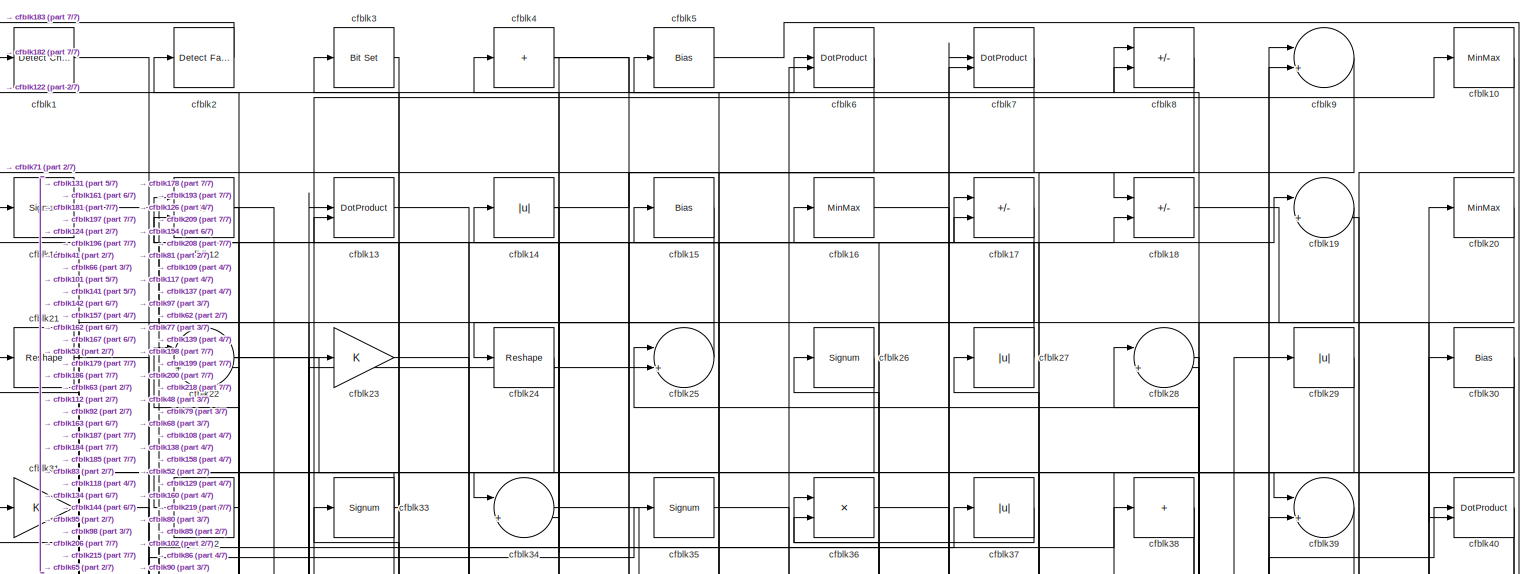
[diagram: root canvas - part 1/7, full width, top band]
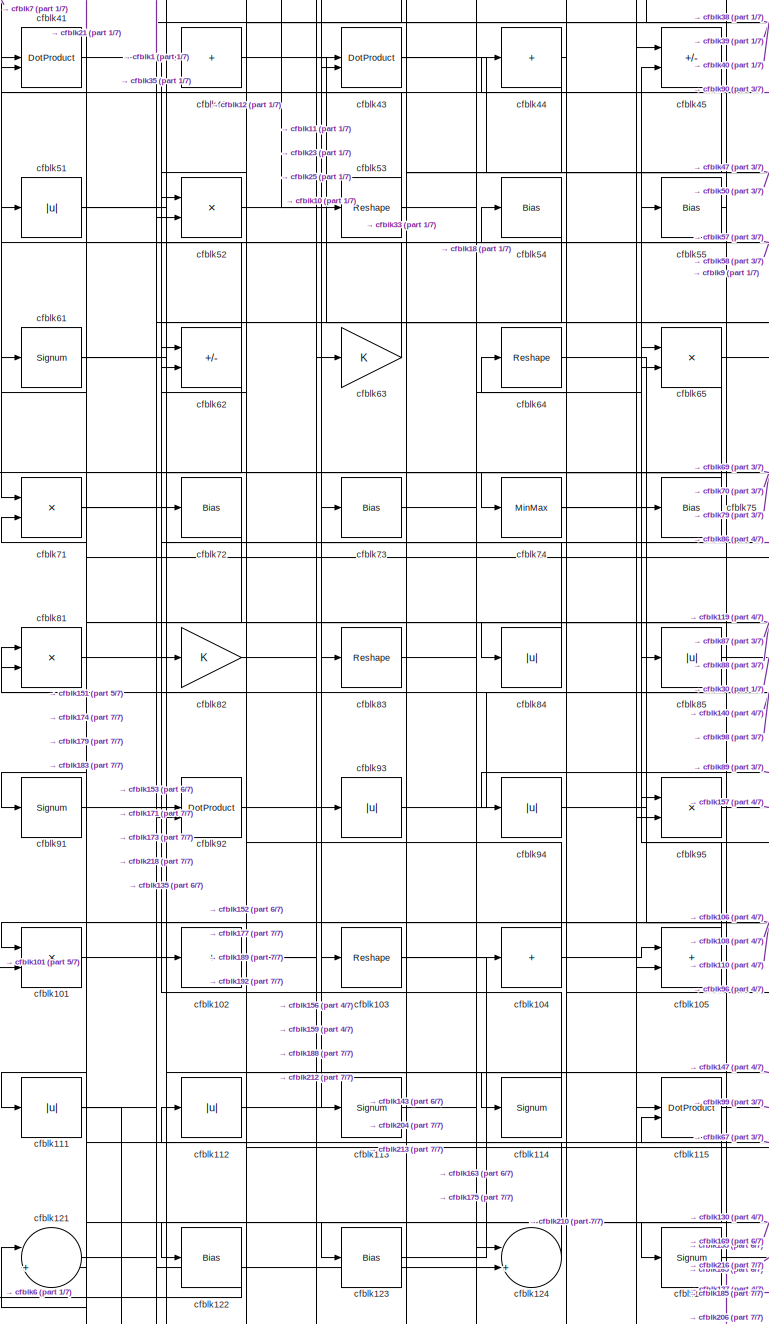
[diagram: root canvas - part 2/7, middle left region]
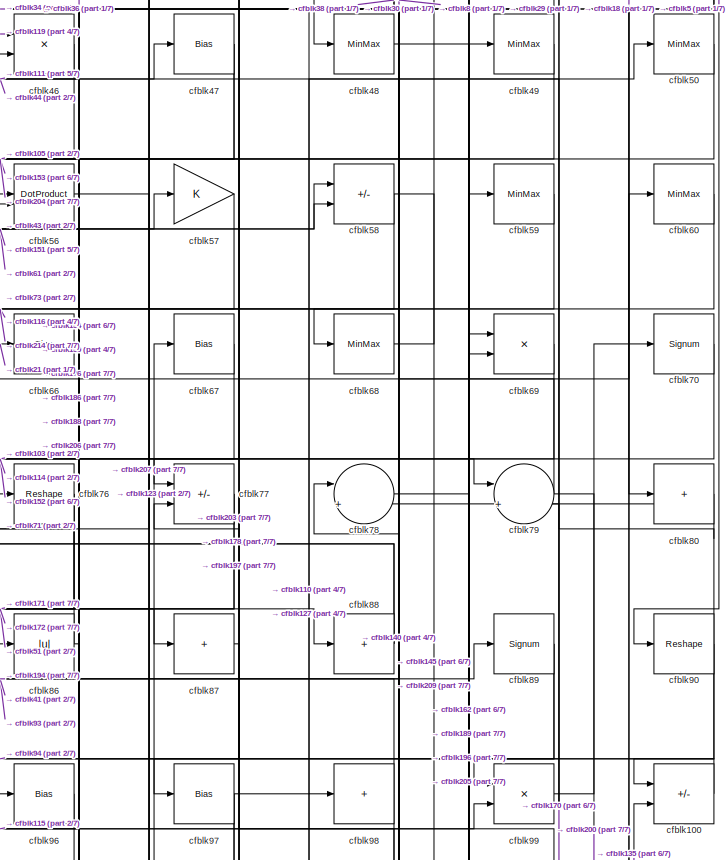
[diagram: root canvas - part 3/7, top right region]
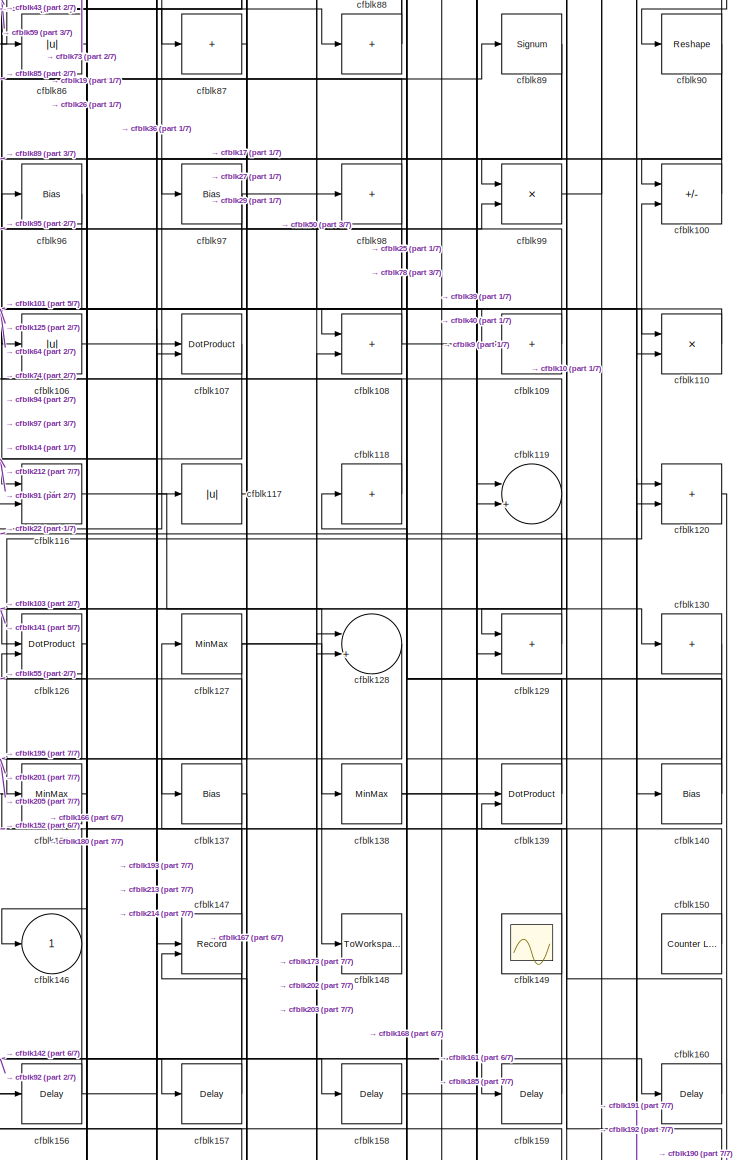
[diagram: root canvas - part 4/7, middle right region]
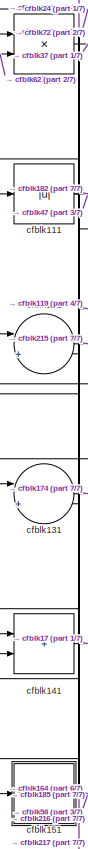
[diagram: root canvas - part 5/7, middle left region]
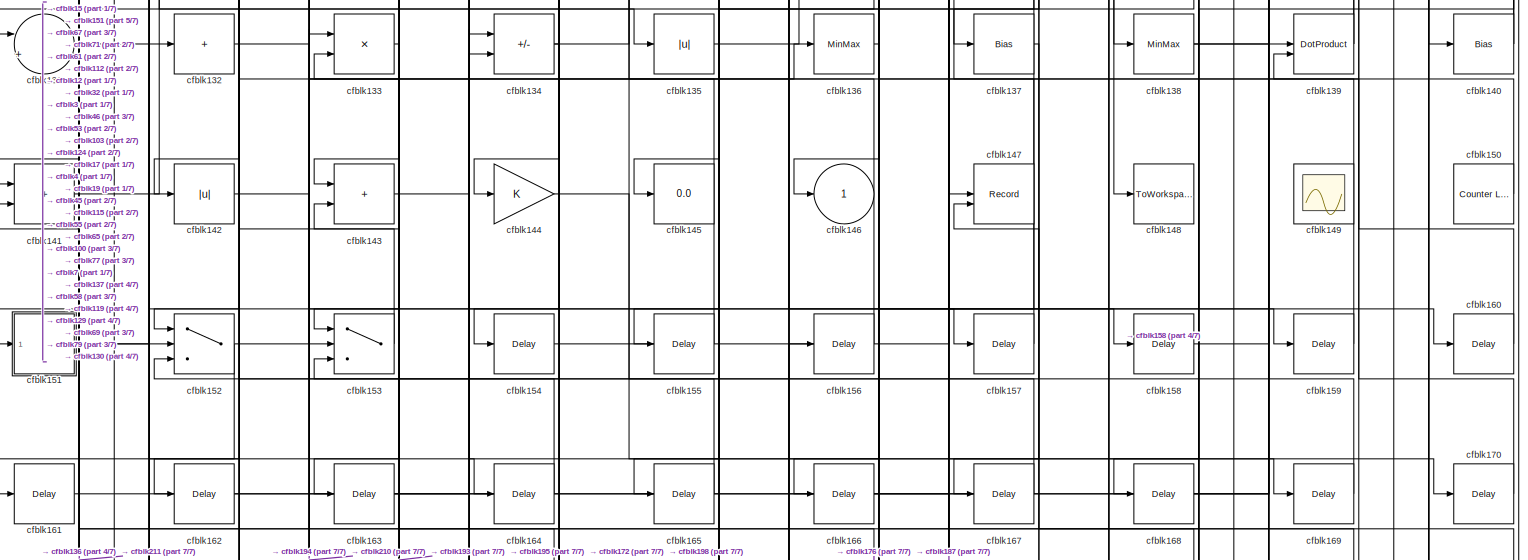
[diagram: root canvas - part 6/7, full width, bottom band]
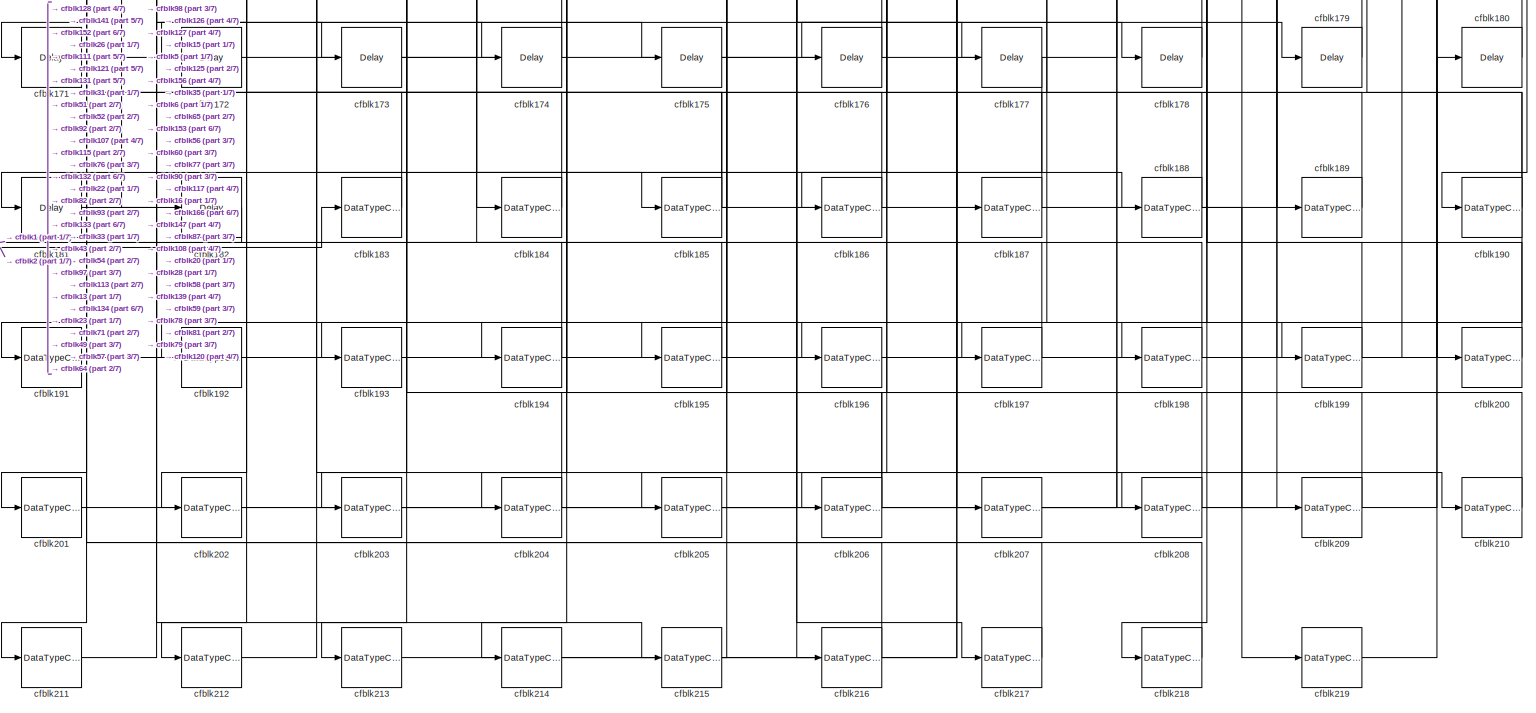
[diagram: root canvas - part 7/7, full width, bottom band]
MODEL slx_3afa9d4de656
KIND model
CONFIG AbsTol = auto
CONFIG EnableMultiTasking = off
CONFIG FixedStep = auto
CONFIG MaxStep = auto
CONFIG MinStep = auto
CONFIG RelTol = 1e-3
CONFIG SampleTimeConstraint = Unconstrained
CONFIG SolverName = VariableStepAuto
CONFIG StartTime = 0.0
CONFIG StopTime = 10.0
BLOCK [Reference] cfblk1  REF=simulink/Logic and Bit
Operations/Detect
Change
  LibrarySourceBlock = hdlsllib/Logic and Bit\nOperations/Detect\nChange
  SourceBlock = simulink/Logic and Bit\nOperations/Detect\nChange
  SourceType = Detect Change
BLOCK [MinMax] cfblk10
BLOCK [Sum] cfblk100
  IconShape = rectangular
  Inputs = +-
BLOCK [Product] cfblk101
  Inputs = */
  RndMeth = Zero
  SaturateOnIntegerOverflow = on
BLOCK [Sum] cfblk102
  IconShape = rectangular
  Inputs = +
BLOCK [Reshape] cfblk103
BLOCK [Sum] cfblk104
  IconShape = rectangular
  Inputs = +
BLOCK [Sum] cfblk105
  IconShape = rectangular
BLOCK [Abs] cfblk106
  SaturateOnIntegerOverflow = off
BLOCK [DotProduct] cfblk107
  OutDataTypeStr = Inherit: Inherit via internal rule
BLOCK [Sum] cfblk108
  IconShape = rectangular
BLOCK [Sum] cfblk109
  IconShape = rectangular
  Inputs = +
BLOCK [Signum] cfblk11
BLOCK [Product] cfblk110
  Inputs = */
  RndMeth = Zero
  SaturateOnIntegerOverflow = on
BLOCK [Abs] cfblk111
  SaturateOnIntegerOverflow = off
BLOCK [Abs] cfblk112
  SaturateOnIntegerOverflow = off
BLOCK [Signum] cfblk113
BLOCK [Signum] cfblk114
BLOCK [DotProduct] cfblk115
  OutDataTypeStr = Inherit: Inherit via internal rule
BLOCK [Product] cfblk116
  Inputs = */
  RndMeth = Zero
  SaturateOnIntegerOverflow = on
BLOCK [Abs] cfblk117
  SaturateOnIntegerOverflow = off
BLOCK [Sum] cfblk118
  IconShape = rectangular
  Inputs = +
BLOCK [Sum] cfblk119
  Inputs = |++
BLOCK [Sum] cfblk12
  IconShape = rectangular
  Inputs = +-
BLOCK [Sum] cfblk120
  IconShape = rectangular
BLOCK [Sum] cfblk121
  Inputs = |++
BLOCK [Bias] cfblk122
  Bias = 0.0
  SaturateOnIntegerOverflow = off
BLOCK [Bias] cfblk123
  Bias = 0.0
  SaturateOnIntegerOverflow = off
BLOCK [Sum] cfblk124
  Inputs = |++
BLOCK [Signum] cfblk125
BLOCK [DotProduct] cfblk126
  OutDataTypeStr = Inherit: Inherit via internal rule
BLOCK [MinMax] cfblk127
BLOCK [Sum] cfblk128
  Inputs = |++
BLOCK [Sum] cfblk129
  IconShape = rectangular
BLOCK [DotProduct] cfblk13
  OutDataTypeStr = Inherit: Inherit via internal rule
BLOCK [Sum] cfblk130
  IconShape = rectangular
  Inputs = +
BLOCK [Sum] cfblk131
  Inputs = |++
BLOCK [Sum] cfblk132
  IconShape = rectangular
  Inputs = +
BLOCK [Product] cfblk133
  Inputs = */
  RndMeth = Zero
  SaturateOnIntegerOverflow = on
BLOCK [Sum] cfblk134
  IconShape = rectangular
  Inputs = +-
BLOCK [Abs] cfblk135
  SaturateOnIntegerOverflow = off
BLOCK [MinMax] cfblk136
BLOCK [Bias] cfblk137
  Bias = 0.0
  SaturateOnIntegerOverflow = off
BLOCK [MinMax] cfblk138
BLOCK [DotProduct] cfblk139
  OutDataTypeStr = Inherit: Inherit via internal rule
BLOCK [Abs] cfblk14
  SaturateOnIntegerOverflow = off
BLOCK [Bias] cfblk140
  Bias = 0.0
  SaturateOnIntegerOverflow = off
BLOCK [Sum] cfblk141
  IconShape = rectangular
BLOCK [Abs] cfblk142
  SaturateOnIntegerOverflow = off
BLOCK [Sum] cfblk143
  IconShape = rectangular
BLOCK [Gain] cfblk144
BLOCK [Display] cfblk145
  Decimation = 1
BLOCK [Outport] cfblk146
  VectorParamsAs1DForOutWhenUnconnected = off
BLOCK [Record] cfblk147
  CompatibilityTag = XY
  FileSettingsInternal = {"entries":[{"content":{"excelSettings":{"content":{},"type":"Streamout.ExcelSettings"}},"type":"Streamout.FileSettingStorage","uuid":""}],"packageUris":["http:\/\/schema.mathworks.com\/mf0\/streamout_blocks\/R2020a"],"version":"1.0"}
  Layout = [1 1]
  SignalsInternal = {"entries":[{"content":{"signals":[{"content":{"blockPath":[],"dimensions":[1],"domain":"","lineColor":"#a2142f","plots":[1],"port":1,"signalID":1073,"signalName":"XY Graph:1"},"type":"RecordBlkView.Signal","uuid":""},{"content":{"blockPath":[],"dimensions":[1],"domain":"","lineColor":"#139fff","plots":[1],"port":2,"signalID":1076,"signalName":"XY Graph:2"},"type":"RecordBlkView.Signal","uuid":""}...<+146ch>
  VisualizationBindings = {"xyplotplugin":{"info":[{"series":[{"bindingParametersList":[{"parameter":"X-Axis","signalID":1073,"signalName":"XY Graph:1"},{"parameter":"Y-Axis","signalID":1076,"signalName":"XY Graph:2"}],"seriesID":12696}],"subplotID":1}]}}
  st = -1
BLOCK [ToWorkspace] cfblk148
  MaxDataPoints = inf
  SampleTime = -1
  SaveFormat = Timeseries
  VariableName = simout
BLOCK [Scope] cfblk149
  Floating = on
  NumInputPorts = 1
  ScopeSpecificationString = Simulink.scopes.TimeScopeBlockCfg('CurrentConfiguration', extmgr.ConfigurationSet(extmgr.Configuration('Core','General UI',true,'FigureColor',[0.156862745098039 0.156862745098039 0.156862745098039]),extmgr.Configuration('Core','Source UI',true),extmgr.Configuration('Sources','WiredSimulink',true,'DataLoggingVariableName','ScopeData1','DataLoggingSaveFormat','StructureWithTime','DataLoggingLimitDat...<+2713ch>
BLOCK [Bias] cfblk15
  Bias = 0.0
  SaturateOnIntegerOverflow = off
BLOCK [Reference] cfblk150  REF=hdlsllib/Sources/Counter
Limited
  SourceBlock = hdlsllib/Sources/Counter\nLimited
  SourceType = Counter Limited
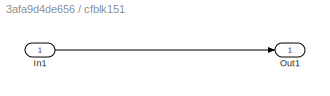
BLOCK [SubSystem] cfblk151
  LibrarySourceBlock = hdlsllib/Ports &\nSubsystems/Subsystem
BLOCK [Inport] cfblk151/In1
BLOCK [Outport] cfblk151/Out1
BLOCK [Switch] cfblk152
  InputSameDT = off
  SaturateOnIntegerOverflow = off
BLOCK [Switch] cfblk153
  InputSameDT = off
  SaturateOnIntegerOverflow = off
BLOCK [Delay] cfblk154
  InputPortMap = u0
  SampleTime = 1
BLOCK [Delay] cfblk155
  InputPortMap = u0
  SampleTime = 1
BLOCK [Delay] cfblk156
  InputPortMap = u0
  SampleTime = 1
BLOCK [Delay] cfblk157
  InputPortMap = u0
  SampleTime = 1
BLOCK [Delay] cfblk158
  InputPortMap = u0
  SampleTime = 1
BLOCK [Delay] cfblk159
  InputPortMap = u0
  SampleTime = 1
BLOCK [MinMax] cfblk16
BLOCK [Delay] cfblk160
  InputPortMap = u0
  SampleTime = 1
BLOCK [Delay] cfblk161
  InputPortMap = u0
  SampleTime = 1
BLOCK [Delay] cfblk162
  InputPortMap = u0
  SampleTime = 1
BLOCK [Delay] cfblk163
  InputPortMap = u0
  SampleTime = 1
BLOCK [Delay] cfblk164
  InputPortMap = u0
  SampleTime = 1
BLOCK [Delay] cfblk165
  InputPortMap = u0
  SampleTime = 1
BLOCK [Delay] cfblk166
  InputPortMap = u0
  SampleTime = 1
BLOCK [Delay] cfblk167
  InputPortMap = u0
  SampleTime = 1
BLOCK [Delay] cfblk168
  InputPortMap = u0
  SampleTime = 1
BLOCK [Delay] cfblk169
  InputPortMap = u0
  SampleTime = 1
BLOCK [Sum] cfblk17
  IconShape = rectangular
  Inputs = +-
BLOCK [Delay] cfblk170
  InputPortMap = u0
  SampleTime = 1
BLOCK [Delay] cfblk171
  InputPortMap = u0
  SampleTime = 1
BLOCK [Delay] cfblk172
  InputPortMap = u0
  SampleTime = 1
BLOCK [Delay] cfblk173
  InputPortMap = u0
  SampleTime = 1
BLOCK [Delay] cfblk174
  InputPortMap = u0
  SampleTime = 1
BLOCK [Delay] cfblk175
  InputPortMap = u0
  SampleTime = 1
BLOCK [Delay] cfblk176
  InputPortMap = u0
  SampleTime = 1
BLOCK [Delay] cfblk177
  InputPortMap = u0
  SampleTime = 1
BLOCK [Delay] cfblk178
  InputPortMap = u0
  SampleTime = 1
BLOCK [Delay] cfblk179
  InputPortMap = u0
  SampleTime = 1
BLOCK [Sum] cfblk18
  IconShape = rectangular
  Inputs = +-
BLOCK [Delay] cfblk180
  InputPortMap = u0
  SampleTime = 1
BLOCK [Delay] cfblk181
  InputPortMap = u0
  SampleTime = 1
BLOCK [Delay] cfblk182
  InputPortMap = u0
  SampleTime = 1
BLOCK [DataTypeConversion] cfblk183
  OutDataTypeStr = uint8
  RndMeth = Floor
  SaturateOnIntegerOverflow = off
BLOCK [DataTypeConversion] cfblk184
  OutDataTypeStr = uint8
  RndMeth = Floor
  SaturateOnIntegerOverflow = off
BLOCK [DataTypeConversion] cfblk185
  RndMeth = Floor
  SaturateOnIntegerOverflow = off
BLOCK [DataTypeConversion] cfblk186
  OutDataTypeStr = uint8
  RndMeth = Floor
  SaturateOnIntegerOverflow = off
BLOCK [DataTypeConversion] cfblk187
  OutDataTypeStr = uint8
  RndMeth = Floor
  SaturateOnIntegerOverflow = off
BLOCK [DataTypeConversion] cfblk188
  RndMeth = Floor
  SaturateOnIntegerOverflow = off
BLOCK [DataTypeConversion] cfblk189
  OutDataTypeStr = uint8
  RndMeth = Floor
  SaturateOnIntegerOverflow = off
BLOCK [Sum] cfblk19
  Inputs = |++
BLOCK [DataTypeConversion] cfblk190
  RndMeth = Floor
  SaturateOnIntegerOverflow = off
BLOCK [DataTypeConversion] cfblk191
  OutDataTypeStr = uint8
  RndMeth = Floor
  SaturateOnIntegerOverflow = off
BLOCK [DataTypeConversion] cfblk192
  OutDataTypeStr = uint8
  RndMeth = Floor
  SaturateOnIntegerOverflow = off
BLOCK [DataTypeConversion] cfblk193
  RndMeth = Floor
  SaturateOnIntegerOverflow = off
BLOCK [DataTypeConversion] cfblk194
  OutDataTypeStr = uint8
  RndMeth = Floor
  SaturateOnIntegerOverflow = off
BLOCK [DataTypeConversion] cfblk195
  OutDataTypeStr = uint8
  RndMeth = Floor
  SaturateOnIntegerOverflow = off
BLOCK [DataTypeConversion] cfblk196
  RndMeth = Floor
  SaturateOnIntegerOverflow = off
BLOCK [DataTypeConversion] cfblk197
  OutDataTypeStr = uint8
  RndMeth = Floor
  SaturateOnIntegerOverflow = off
BLOCK [DataTypeConversion] cfblk198
  OutDataTypeStr = uint8
  RndMeth = Floor
  SaturateOnIntegerOverflow = off
BLOCK [DataTypeConversion] cfblk199
  OutDataTypeStr = uint8
  RndMeth = Floor
  SaturateOnIntegerOverflow = off
BLOCK [Reference] cfblk2  REF=hdlsllib/Logic and Bit
Operations/Detect Fall
Negative
  SourceBlock = hdlsllib/Logic and Bit\nOperations/Detect Fall\nNegative
  SourceType = Detect Fall Negative
BLOCK [MinMax] cfblk20
BLOCK [DataTypeConversion] cfblk200
  OutDataTypeStr = uint8
  RndMeth = Floor
  SaturateOnIntegerOverflow = off
BLOCK [DataTypeConversion] cfblk201
  OutDataTypeStr = uint8
  RndMeth = Floor
  SaturateOnIntegerOverflow = off
BLOCK [DataTypeConversion] cfblk202
  OutDataTypeStr = uint8
  RndMeth = Floor
  SaturateOnIntegerOverflow = off
BLOCK [DataTypeConversion] cfblk203
  OutDataTypeStr = uint8
  RndMeth = Floor
  SaturateOnIntegerOverflow = off
BLOCK [DataTypeConversion] cfblk204
  OutDataTypeStr = uint8
  RndMeth = Floor
  SaturateOnIntegerOverflow = off
BLOCK [DataTypeConversion] cfblk205
  OutDataTypeStr = uint8
  RndMeth = Floor
  SaturateOnIntegerOverflow = off
BLOCK [DataTypeConversion] cfblk206
  RndMeth = Floor
  SaturateOnIntegerOverflow = off
BLOCK [DataTypeConversion] cfblk207
  OutDataTypeStr = uint8
  RndMeth = Floor
  SaturateOnIntegerOverflow = off
BLOCK [DataTypeConversion] cfblk208
  OutDataTypeStr = uint8
  RndMeth = Floor
  SaturateOnIntegerOverflow = off
BLOCK [DataTypeConversion] cfblk209
  OutDataTypeStr = uint8
  RndMeth = Floor
  SaturateOnIntegerOverflow = off
BLOCK [Reshape] cfblk21
BLOCK [DataTypeConversion] cfblk210
  OutDataTypeStr = uint8
  RndMeth = Floor
  SaturateOnIntegerOverflow = off
BLOCK [DataTypeConversion] cfblk211
  OutDataTypeStr = uint8
  RndMeth = Floor
  SaturateOnIntegerOverflow = off
BLOCK [DataTypeConversion] cfblk212
  OutDataTypeStr = uint8
  RndMeth = Floor
  SaturateOnIntegerOverflow = off
BLOCK [DataTypeConversion] cfblk213
  OutDataTypeStr = uint8
  RndMeth = Floor
  SaturateOnIntegerOverflow = off
BLOCK [DataTypeConversion] cfblk214
  OutDataTypeStr = uint8
  RndMeth = Floor
  SaturateOnIntegerOverflow = off
BLOCK [DataTypeConversion] cfblk215
  OutDataTypeStr = uint8
  RndMeth = Floor
  SaturateOnIntegerOverflow = off
BLOCK [DataTypeConversion] cfblk216
  OutDataTypeStr = uint8
  RndMeth = Floor
  SaturateOnIntegerOverflow = off
BLOCK [DataTypeConversion] cfblk217
  OutDataTypeStr = uint8
  RndMeth = Floor
  SaturateOnIntegerOverflow = off
BLOCK [DataTypeConversion] cfblk218
  OutDataTypeStr = uint8
  RndMeth = Floor
  SaturateOnIntegerOverflow = off
BLOCK [DataTypeConversion] cfblk219
  OutDataTypeStr = uint8
  RndMeth = Floor
  SaturateOnIntegerOverflow = off
BLOCK [Sum] cfblk22
  Inputs = |++
BLOCK [Gain] cfblk23
BLOCK [Reshape] cfblk24
BLOCK [Sum] cfblk25
  Inputs = |++
BLOCK [Signum] cfblk26
BLOCK [Abs] cfblk27
  SaturateOnIntegerOverflow = off
BLOCK [Sum] cfblk28
  Inputs = |++
BLOCK [Abs] cfblk29
  SaturateOnIntegerOverflow = off
BLOCK [Reference] cfblk3  REF=simulink/Logic and Bit
Operations/Bit Set
  LibrarySourceBlock = hdlsllib/Logic and Bit\nOperations/Bit Set
  SourceBlock = simulink/Logic and Bit\nOperations/Bit Set
  SourceType = Bit Set
BLOCK [Bias] cfblk30
  Bias = 0.0
  SaturateOnIntegerOverflow = off
BLOCK [Gain] cfblk31
BLOCK [Signum] cfblk32
BLOCK [Signum] cfblk33
BLOCK [Sum] cfblk34
  Inputs = |++
BLOCK [Signum] cfblk35
BLOCK [Product] cfblk36
  Inputs = */
  RndMeth = Zero
  SaturateOnIntegerOverflow = on
BLOCK [Abs] cfblk37
  SaturateOnIntegerOverflow = off
BLOCK [Sum] cfblk38
  IconShape = rectangular
  Inputs = +
BLOCK [Sum] cfblk39
  Inputs = |++
BLOCK [Sum] cfblk4
  IconShape = rectangular
  Inputs = +
BLOCK [DotProduct] cfblk40
  OutDataTypeStr = Inherit: Inherit via internal rule
BLOCK [DotProduct] cfblk41
  OutDataTypeStr = Inherit: Inherit via internal rule
BLOCK [Sum] cfblk42
  IconShape = rectangular
  Inputs = +
BLOCK [DotProduct] cfblk43
  OutDataTypeStr = Inherit: Inherit via internal rule
BLOCK [Sum] cfblk44
  IconShape = rectangular
  Inputs = +
BLOCK [Sum] cfblk45
  IconShape = rectangular
  Inputs = +-
BLOCK [Product] cfblk46
  Inputs = */
  RndMeth = Zero
  SaturateOnIntegerOverflow = on
BLOCK [Bias] cfblk47
  Bias = 0.0
  SaturateOnIntegerOverflow = off
BLOCK [MinMax] cfblk48
BLOCK [MinMax] cfblk49
BLOCK [Bias] cfblk5
  Bias = 0.0
  SaturateOnIntegerOverflow = off
BLOCK [MinMax] cfblk50
BLOCK [Abs] cfblk51
  SaturateOnIntegerOverflow = off
BLOCK [Product] cfblk52
  Inputs = */
  RndMeth = Zero
  SaturateOnIntegerOverflow = on
BLOCK [Reshape] cfblk53
BLOCK [Bias] cfblk54
  Bias = 0.0
  SaturateOnIntegerOverflow = off
BLOCK [Bias] cfblk55
  Bias = 0.0
  SaturateOnIntegerOverflow = off
BLOCK [DotProduct] cfblk56
  OutDataTypeStr = Inherit: Inherit via internal rule
BLOCK [Gain] cfblk57
BLOCK [Sum] cfblk58
  IconShape = rectangular
  Inputs = +-
BLOCK [MinMax] cfblk59
BLOCK [DotProduct] cfblk6
  OutDataTypeStr = Inherit: Inherit via internal rule
BLOCK [MinMax] cfblk60
BLOCK [Signum] cfblk61
BLOCK [Sum] cfblk62
  IconShape = rectangular
  Inputs = +-
BLOCK [Gain] cfblk63
BLOCK [Reshape] cfblk64
BLOCK [Product] cfblk65
  Inputs = */
  RndMeth = Zero
  SaturateOnIntegerOverflow = on
BLOCK [Bias] cfblk66
  Bias = 0.0
  SaturateOnIntegerOverflow = off
BLOCK [Bias] cfblk67
  Bias = 0.0
  SaturateOnIntegerOverflow = off
BLOCK [MinMax] cfblk68
BLOCK [Product] cfblk69
  Inputs = */
  RndMeth = Zero
  SaturateOnIntegerOverflow = on
BLOCK [DotProduct] cfblk7
  OutDataTypeStr = Inherit: Inherit via internal rule
BLOCK [Signum] cfblk70
BLOCK [Product] cfblk71
  Inputs = */
  RndMeth = Zero
  SaturateOnIntegerOverflow = on
BLOCK [Bias] cfblk72
  Bias = 0.0
  SaturateOnIntegerOverflow = off
BLOCK [Bias] cfblk73
  Bias = 0.0
  SaturateOnIntegerOverflow = off
BLOCK [MinMax] cfblk74
BLOCK [Bias] cfblk75
  Bias = 0.0
  SaturateOnIntegerOverflow = off
BLOCK [Reshape] cfblk76
BLOCK [Sum] cfblk77
  IconShape = rectangular
  Inputs = +-
BLOCK [Sum] cfblk78
  Inputs = |++
BLOCK [Sum] cfblk79
  Inputs = |++
BLOCK [Sum] cfblk8
  IconShape = rectangular
  Inputs = +-
BLOCK [Sum] cfblk80
  IconShape = rectangular
  Inputs = +
BLOCK [Product] cfblk81
  Inputs = */
  RndMeth = Zero
  SaturateOnIntegerOverflow = on
BLOCK [Gain] cfblk82
BLOCK [Reshape] cfblk83
BLOCK [Abs] cfblk84
  SaturateOnIntegerOverflow = off
BLOCK [Abs] cfblk85
  SaturateOnIntegerOverflow = off
BLOCK [Abs] cfblk86
  SaturateOnIntegerOverflow = off
BLOCK [Sum] cfblk87
  IconShape = rectangular
  Inputs = +
BLOCK [Sum] cfblk88
  IconShape = rectangular
  Inputs = +
BLOCK [Signum] cfblk89
BLOCK [Sum] cfblk9
  Inputs = |++
BLOCK [Reshape] cfblk90
BLOCK [Signum] cfblk91
BLOCK [DotProduct] cfblk92
  OutDataTypeStr = Inherit: Inherit via internal rule
BLOCK [Abs] cfblk93
  SaturateOnIntegerOverflow = off
BLOCK [Abs] cfblk94
  SaturateOnIntegerOverflow = off
BLOCK [Product] cfblk95
  Inputs = */
  RndMeth = Zero
  SaturateOnIntegerOverflow = on
BLOCK [Bias] cfblk96
  Bias = 0.0
  SaturateOnIntegerOverflow = off
BLOCK [Bias] cfblk97
  Bias = 0.0
  SaturateOnIntegerOverflow = off
BLOCK [Sum] cfblk98
  IconShape = rectangular
  Inputs = +
BLOCK [Product] cfblk99
  Inputs = */
  RndMeth = Zero
  SaturateOnIntegerOverflow = on
LINE cfblk100:1 -> cfblk99:1
LINE cfblk101:1 -> cfblk37:1
NET cfblk102:1 -> cfblk23:1, cfblk25:2
NET cfblk103:1 -> cfblk130:1, cfblk169:1
NET cfblk104:1 -> cfblk105:1, cfblk62:2
LINE cfblk105:1 -> cfblk45:2
LINE cfblk106:1 -> cfblk160:1
LINE cfblk107:1 -> cfblk212:1
NET cfblk108:1 -> cfblk40:1, cfblk95:1
LINE cfblk109:1 -> cfblk17:1
LINE cfblk10:1 -> cfblk129:1
LINE cfblk110:1 -> cfblk101:1
NET cfblk111:1 -> cfblk182:1, cfblk47:1
LINE cfblk112:1 -> cfblk10:1
LINE cfblk113:1 -> cfblk175:1
LINE cfblk114:1 -> cfblk72:1
NET cfblk115:1 -> cfblk155:1, cfblk192:1, cfblk99:2
LINE cfblk116:1 -> cfblk148:1
LINE cfblk117:1 -> cfblk27:1
LINE cfblk118:1 -> cfblk14:1
NET cfblk119:1 -> cfblk141:1, cfblk46:1
LINE cfblk11:1 -> cfblk63:1
LINE cfblk120:1 -> cfblk190:1
LINE cfblk121:1 -> cfblk215:1
LINE cfblk122:1 -> cfblk6:1
LINE cfblk123:1 -> cfblk67:1
LINE cfblk124:1 -> cfblk81:1
LINE cfblk125:1 -> cfblk216:1
NET cfblk126:1 -> cfblk205:1, cfblk26:1
NET cfblk127:1 -> cfblk138:1, cfblk195:1, cfblk50:1
LINE cfblk128:1 -> cfblk201:1
LINE cfblk129:1 -> cfblk22:2
NET cfblk12:1 -> cfblk142:1, cfblk53:1
LINE cfblk130:1 -> cfblk168:1
LINE cfblk131:1 -> cfblk174:1
LINE cfblk132:1 -> cfblk210:1
LINE cfblk133:1 -> cfblk193:1
NET cfblk134:1 -> cfblk19:1, cfblk4:1
LINE cfblk135:1 -> cfblk100:2
LINE cfblk136:1 -> cfblk96:1
NET cfblk137:1 -> cfblk166:1, cfblk167:1, cfblk55:1
NET cfblk138:1 -> cfblk9:1, cfblk9:2
NET cfblk139:1 -> cfblk118:1, cfblk25:1
LINE cfblk13:1 -> cfblk185:1
NET cfblk140:1 -> cfblk78:1, cfblk85:1
LINE cfblk141:1 -> cfblk17:2
LINE cfblk142:1 -> cfblk158:1
LINE cfblk143:1 -> cfblk65:2
LINE cfblk144:1 -> cfblk170:1
NET cfblk14:1 -> cfblk18:1, cfblk34:1
LINE cfblk150:1 -> cfblk127:1
LINE cfblk151/In1:1 -> cfblk151/Out1:1
NET cfblk151:1 -> cfblk164:1, cfblk58:2
NET cfblk152:1 -> cfblk136:1, cfblk211:1
LINE cfblk153:1 -> cfblk112:1
LINE cfblk154:1 -> cfblk7:1
LINE cfblk155:1 -> cfblk45:1
LINE cfblk156:1 -> cfblk43:1
LINE cfblk157:1 -> cfblk22:1
LINE cfblk158:1 -> cfblk39:2
LINE cfblk159:1 -> cfblk46:2
LINE cfblk15:1 -> cfblk161:1
LINE cfblk160:1 -> cfblk19:2
LINE cfblk161:1 -> cfblk119:2
LINE cfblk162:1 -> cfblk69:1
LINE cfblk163:1 -> cfblk124:1
LINE cfblk164:1 -> cfblk152:3
LINE cfblk165:1 -> cfblk115:1
LINE cfblk166:1 -> cfblk187:1
LINE cfblk167:1 -> cfblk12:2
LINE cfblk168:1 -> cfblk129:2
LINE cfblk169:1 -> cfblk143:2
LINE cfblk16:1 -> cfblk208:1
LINE cfblk170:1 -> cfblk79:2
LINE cfblk171:1 -> cfblk52:2
LINE cfblk172:1 -> cfblk134:2
LINE cfblk173:1 -> cfblk108:2
LINE cfblk174:1 -> cfblk71:2
LINE cfblk175:1 -> cfblk217:1
LINE cfblk176:1 -> cfblk153:3
LINE cfblk177:1 -> cfblk191:1
LINE cfblk178:1 -> cfblk77:2
LINE cfblk179:1 -> cfblk81:2
LINE cfblk17:1 -> cfblk144:1
LINE cfblk180:1 -> cfblk126:2
LINE cfblk181:1 -> cfblk199:1
LINE cfblk182:1 -> cfblk1:1
LINE cfblk183:1 -> cfblk51:1
LINE cfblk184:1 -> cfblk2:1
NET cfblk185:1 -> cfblk115:2, cfblk131:2, cfblk139:1, cfblk141:2
LINE cfblk186:1 -> cfblk13:1
LINE cfblk187:1 -> cfblk13:2
NET cfblk188:1 -> cfblk219:1, cfblk56:2
LINE cfblk189:1 -> cfblk82:1
LINE cfblk18:1 -> cfblk80:1
NET cfblk190:1 -> cfblk139:2, cfblk147:2, cfblk202:1
LINE cfblk191:1 -> cfblk120:1
LINE cfblk192:1 -> cfblk120:2
NET cfblk193:1 -> cfblk117:1, cfblk6:2
LINE cfblk194:1 -> cfblk133:1
LINE cfblk195:1 -> cfblk133:2
NET cfblk196:1 -> cfblk180:1, cfblk59:1
LINE cfblk197:1 -> cfblk31:1
LINE cfblk198:1 -> cfblk134:1
LINE cfblk199:1 -> cfblk28:1
LINE cfblk19:1 -> cfblk126:1
LINE cfblk1:1 -> cfblk124:2
LINE cfblk200:1 -> cfblk28:2
LINE cfblk201:1 -> cfblk156:1
LINE cfblk202:1 -> cfblk128:1
LINE cfblk203:1 -> cfblk128:2
LINE cfblk204:1 -> cfblk43:2
LINE cfblk205:1 -> cfblk49:1
NET cfblk206:1 -> cfblk15:1, cfblk64:1
LINE cfblk207:1 -> cfblk60:1
LINE cfblk208:1 -> cfblk33:1
LINE cfblk209:1 -> cfblk16:1
LINE cfblk20:1 -> cfblk218:1
LINE cfblk210:1 -> cfblk54:1
LINE cfblk211:1 -> cfblk132:1
LINE cfblk212:1 -> cfblk93:1
LINE cfblk213:1 -> cfblk107:1
LINE cfblk214:1 -> cfblk107:2
LINE cfblk215:1 -> cfblk5:1
LINE cfblk216:1 -> cfblk121:1
LINE cfblk217:1 -> cfblk121:2
LINE cfblk218:1 -> cfblk92:1
LINE cfblk219:1 -> cfblk20:1
LINE cfblk21:1 -> cfblk66:1
NET cfblk22:1 -> cfblk179:1, cfblk39:1
LINE cfblk23:1 -> cfblk184:1
LINE cfblk24:1 -> cfblk131:1
LINE cfblk25:1 -> cfblk24:1
LINE cfblk26:1 -> cfblk181:1
LINE cfblk27:1 -> cfblk12:1
LINE cfblk28:1 -> cfblk198:1
LINE cfblk29:1 -> cfblk137:1
LINE cfblk2:1 -> cfblk183:1
NET cfblk30:1 -> cfblk48:1, cfblk68:1
LINE cfblk31:1 -> cfblk196:1
LINE cfblk32:1 -> cfblk162:1
NET cfblk33:1 -> cfblk32:1, cfblk3:1, cfblk92:2
LINE cfblk34:1 -> cfblk98:1
LINE cfblk35:1 -> cfblk178:1
LINE cfblk36:1 -> cfblk109:1
LINE cfblk37:1 -> cfblk36:1
NET cfblk38:1 -> cfblk62:1, cfblk77:1
LINE cfblk39:1 -> cfblk52:1
LINE cfblk3:1 -> cfblk163:1
NET cfblk40:1 -> cfblk102:1, cfblk86:1
LINE cfblk41:1 -> cfblk35:1
LINE cfblk42:1 -> cfblk75:1
NET cfblk43:1 -> cfblk119:1, cfblk87:1
NET cfblk44:1 -> cfblk113:1, cfblk84:1
LINE cfblk45:1 -> cfblk83:1
LINE cfblk46:1 -> cfblk153:1
NET cfblk47:1 -> cfblk123:1, cfblk56:1
LINE cfblk48:1 -> cfblk69:2
LINE cfblk49:1 -> cfblk204:1
NET cfblk4:1 -> cfblk34:2, cfblk40:2, cfblk8:2
LINE cfblk50:1 -> cfblk105:2
NET cfblk51:1 -> cfblk173:1, cfblk88:1
LINE cfblk52:1 -> cfblk104:1
NET cfblk53:1 -> cfblk11:1, cfblk143:1, cfblk18:2
NET cfblk54:1 -> cfblk122:1, cfblk213:1
LINE cfblk55:1 -> cfblk165:1
LINE cfblk56:1 -> cfblk207:1
LINE cfblk57:1 -> cfblk214:1
NET cfblk58:1 -> cfblk145:1, cfblk209:1
LINE cfblk59:1 -> cfblk116:1
LINE cfblk5:1 -> cfblk90:1
LINE cfblk60:1 -> cfblk206:1
NET cfblk61:1 -> cfblk135:1, cfblk57:1
NET cfblk62:1 -> cfblk101:2, cfblk41:1, cfblk91:1
LINE cfblk63:1 -> cfblk21:1
LINE cfblk64:1 -> cfblk106:1
NET cfblk65:1 -> cfblk152:1, cfblk177:1
LINE cfblk66:1 -> cfblk36:2
LINE cfblk67:1 -> cfblk152:2
LINE cfblk68:1 -> cfblk29:1
LINE cfblk69:1 -> cfblk114:1
LINE cfblk6:1 -> cfblk95:2
LINE cfblk70:1 -> cfblk103:1
NET cfblk71:1 -> cfblk153:2, cfblk79:1
LINE cfblk72:1 -> cfblk151:1
LINE cfblk73:1 -> cfblk58:1
NET cfblk74:1 -> cfblk108:1, cfblk110:1
LINE cfblk75:1 -> cfblk74:1
NET cfblk76:1 -> cfblk171:1, cfblk172:1
NET cfblk77:1 -> cfblk154:1, cfblk186:1
LINE cfblk78:1 -> cfblk189:1
NET cfblk79:1 -> cfblk200:1, cfblk8:1
LINE cfblk7:1 -> cfblk71:1
LINE cfblk80:1 -> cfblk78:2
LINE cfblk81:1 -> cfblk7:2
LINE cfblk82:1 -> cfblk188:1
LINE cfblk83:1 -> cfblk38:1
LINE cfblk84:1 -> cfblk42:1
LINE cfblk85:1 -> cfblk30:1
NET cfblk86:1 -> cfblk146:1, cfblk73:1
LINE cfblk87:1 -> cfblk197:1
NET cfblk88:1 -> cfblk61:1, cfblk76:1
NET cfblk89:1 -> cfblk116:2, cfblk94:1
LINE cfblk8:1 -> cfblk97:1
NET cfblk90:1 -> cfblk100:1, cfblk176:1, cfblk44:1
LINE cfblk91:1 -> cfblk147:1
LINE cfblk92:1 -> cfblk159:1
LINE cfblk93:1 -> cfblk89:1
LINE cfblk94:1 -> cfblk140:1
LINE cfblk95:1 -> cfblk157:1
LINE cfblk96:1 -> cfblk125:1
NET cfblk97:1 -> cfblk110:2, cfblk111:1, cfblk203:1
NET cfblk98:1 -> cfblk194:1, cfblk41:2
LINE cfblk99:1 -> cfblk70:1
LINE cfblk9:1 -> cfblk65:1
note: NET lines group one-source signal fan-out (src -> all destinations, sorted); 1:1 wires keep LINE
